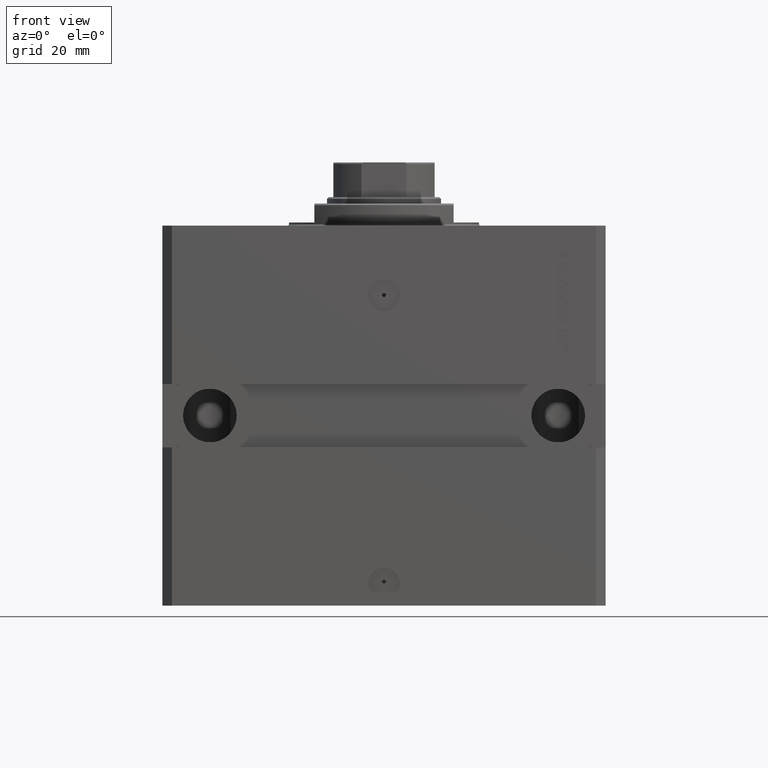
[diagram: clean part render]
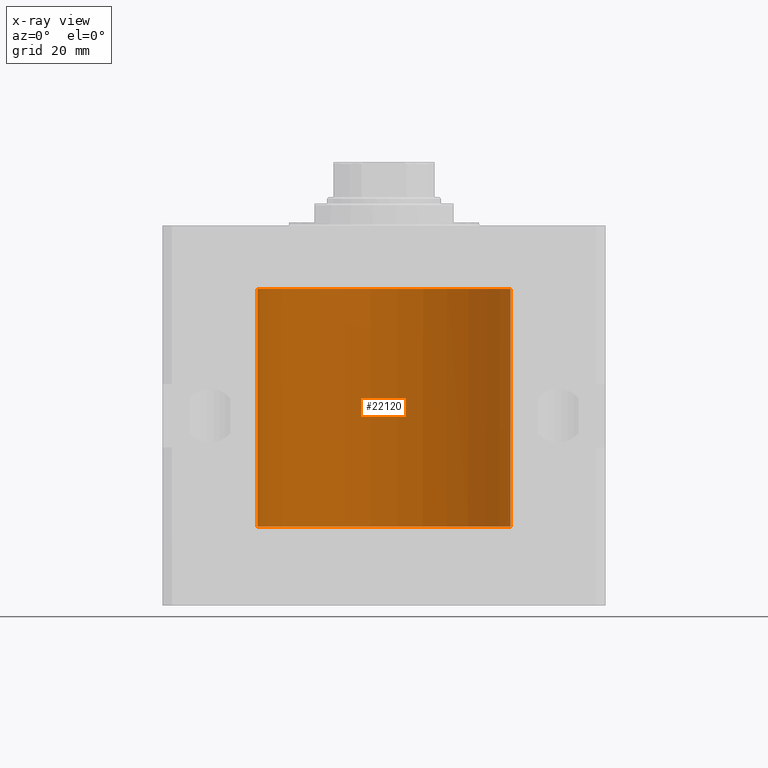
[diagram: x-ray — body ghosted, one internal face saturated and labeled with its STEP entity id]
A machine part, front view, then the same camera in x-ray: the body is ghosted and one INTERNAL B-rep face — a face not visible from any outside direction — is saturated and labeled: STEP entity #22120.
In plain terms, the highlighted cylindrical surface (partial cylindrical patch) has radius 40 mm, axis along (0, 0, 1).
Its self-contained STEP definition (entity closure, byte-faithful):
#376 = CARTESIAN_POINT ( 'NONE',  ( -39.99973691478699322, 0.1636360998065314876, -34.39126145361714748 ) ) ;
#1136 = EDGE_CURVE ( 'NONE', #36626, #48253, #29279, .T. ) ;
#2220 = LINE ( 'NONE', #17461, #40164 ) ;
#3046 = CARTESIAN_POINT ( 'NONE',  ( -40.00000000000000000, 4.898587196589413026E-15, -95.00000000000000000 ) ) ;
#3285 = CARTESIAN_POINT ( 'NONE',  ( -40.00000000000004974, 3.462873814982701370E-13, -35.62500000000321165 ) ) ;
#3867 = CARTESIAN_POINT ( 'NONE',  ( -39.99628330279644928, 0.5573335244821722156, -34.67349122557948249 ) ) ;
#3920 = CARTESIAN_POINT ( 'NONE',  ( 40.00000000000000000, 0.000000000000000000, -95.00000000000000000 ) ) ;
#4605 = CARTESIAN_POINT ( 'NONE',  ( -40.00000000000000000, 1.067655236296513633E-14, -34.37500000000000000 ) ) ;
#4913 = CARTESIAN_POINT ( 'NONE',  ( 0.000000000000000000, 0.000000000000000000, -95.00000000000000000 ) ) ;
#5529 = B_SPLINE_CURVE_WITH_KNOTS ( 'NONE', 3,
 ( #30593, #49284, #46027, #19604, #12326, #11830 ),
 .UNSPECIFIED., .F., .F.,
 ( 4, 2, 4 ),
 ( 0.0009772540346079494188, 0.001465659755749416406, 0.001954065476890883609 ),
 .UNSPECIFIED. ) ;
#5569 = ORIENTED_EDGE ( 'NONE', *, *, #7532, .F. ) ;
#5624 = VERTEX_POINT ( 'NONE', #10632 ) ;
#5732 = CARTESIAN_POINT ( 'NONE',  ( 40.00000000000000000, -8.127381911450081348E-16, -35.62500000000000711 ) ) ;
#5741 = EDGE_CURVE ( 'NONE', #22070, #48253, #34096, .T. ) ;
#5784 = EDGE_CURVE ( 'NONE', #5624, #26562, #5529, .T. ) ;
#6175 = CIRCLE ( 'NONE', #14931, 40.00000000000000000 ) ;
#6192 = CARTESIAN_POINT ( 'NONE',  ( -40.00000000000000000, 4.898587196589413026E-15, -94.37500000000000000 ) ) ;
#6299 = DIRECTION ( 'NONE',  ( -0.000000000000000000, -0.000000000000000000, 1.000000000000000000 ) ) ;
#6445 = EDGE_CURVE ( 'NONE', #20837, #9841, #23535, .T. ) ;
#6534 = CARTESIAN_POINT ( 'NONE',  ( -40.00000000000000000, 1.067655236296513633E-14, -34.37500000000000000 ) ) ;
#7532 = EDGE_CURVE ( 'NONE', #22070, #28058, #2220, .T. ) ;
#8103 = CARTESIAN_POINT ( 'NONE',  ( -39.99511598657579725, 0.6250577762831023287, -35.16284024614854076 ) ) ;
#8654 = CYLINDRICAL_SURFACE ( 'NONE', #26996, 40.00000000000000000 ) ;
#8742 = CARTESIAN_POINT ( 'NONE',  ( 40.00000000000004974, 3.413887732429780293E-13, -94.37499999999677414 ) ) ;
#8826 = CARTESIAN_POINT ( 'NONE',  ( -40.00000000000000000, 4.898587196589413026E-15, -94.37500000000000000 ) ) ;
#9381 = B_SPLINE_CURVE_WITH_KNOTS ( 'NONE', 3,
 ( #35195, #16241, #31471, #46662, #42921, #8742 ),
 .UNSPECIFIED., .F., .F.,
 ( 4, 2, 4 ),
 ( 0.0009772540346065596885, 0.001465659755748721432, 0.001954065476890883175 ),
 .UNSPECIFIED. ) ;
#9841 = VERTEX_POINT ( 'NONE', #39484 ) ;
#10250 = DIRECTION ( 'NONE',  ( 1.000000000000000000, 0.000000000000000000, 0.000000000000000000 ) ) ;
#10632 = CARTESIAN_POINT ( 'NONE',  ( 39.99511688944026844, 0.6250000000083444363, -34.99999999999904787 ) ) ;
#10829 = EDGE_LOOP ( 'NONE', ( #37390, #45913, #17027, #26887, #14911, #41823, #18309, #39811, #23918, #5569, #35675 ) ) ;
#11355 = CARTESIAN_POINT ( 'NONE',  ( -39.99819482034362039, 0.3843641341271077372, -34.50046008996472580 ) ) ;
#11830 = CARTESIAN_POINT ( 'NONE',  ( 40.00000000000004974, 3.413887943360836494E-13, -34.37499999999679545 ) ) ;
#12326 = CARTESIAN_POINT ( 'NONE',  ( 39.99999999999999289, 0.1631284562790711046, -34.37500000000014211 ) ) ;
#13183 = CARTESIAN_POINT ( 'NONE',  ( 0.000000000000000000, 0.000000000000000000, -95.00000000000000000 ) ) ;
#14911 = ORIENTED_EDGE ( 'NONE', *, *, #23309, .T. ) ;
#14931 = AXIS2_PLACEMENT_3D ( 'NONE', #43936, #39949, #10250 ) ;
#15902 = DIRECTION ( 'NONE',  ( 1.000000000000000000, 0.000000000000000000, 0.000000000000000000 ) ) ;
#16241 = CARTESIAN_POINT ( 'NONE',  ( 39.99511688944039633, 0.6250000000000321965, -94.83697203652990027 ) ) ;
#16372 = CARTESIAN_POINT ( 'NONE',  ( 39.99511688944039633, 0.6250000000000323075, -95.00000000000000000 ) ) ;
#17027 = ORIENTED_EDGE ( 'NONE', *, *, #6445, .F. ) ;
#17461 = CARTESIAN_POINT ( 'NONE',  ( -40.00000000000000000, 4.898587196589413026E-15, -95.00000000000000000 ) ) ;
#17835 = DIRECTION ( 'NONE',  ( -0.000000000000000000, -0.000000000000000000, 1.000000000000000000 ) ) ;
#18309 = ORIENTED_EDGE ( 'NONE', *, *, #5784, .T. ) ;
#18405 = CARTESIAN_POINT ( 'NONE',  ( -40.00000000000000000, 4.898587196589413026E-15, -20.00000000000000355 ) ) ;
#19367 = CARTESIAN_POINT ( 'NONE',  ( -39.99884667815961592, 0.3253863549934230548, -35.55855380835959778 ) ) ;
#19604 = CARTESIAN_POINT ( 'NONE',  ( 39.99884730045106096, 0.3253091163521321660, -34.44141080451295522 ) ) ;
#20218 = EDGE_CURVE ( 'NONE', #47978, #5624, #38340, .T. ) ;
#20569 = CARTESIAN_POINT ( 'NONE',  ( -40.00000000000000000, 0.08261046678389480369, -94.37500000000004263 ) ) ;
#20656 = CARTESIAN_POINT ( 'NONE',  ( 40.00000000000000000, 0.000000000000000000, -95.00000000000000000 ) ) ;
#20837 = VERTEX_POINT ( 'NONE', #16372 ) ;
#20975 = CARTESIAN_POINT ( 'NONE',  ( 39.99883059471594038, 0.3150922677711073816, -35.54594794608674135 ) ) ;
#22070 = VERTEX_POINT ( 'NONE', #6534 ) ;
#22120 = ADVANCED_FACE ( 'NONE', ( #42831 ), #8654, .F. ) ;
#22874 = CARTESIAN_POINT ( 'NONE',  ( -40.00000000000000000, 0.08259175989844856625, -34.37500000000000711 ) ) ;
#23309 = EDGE_CURVE ( 'NONE', #46904, #47978, #39597, .T. ) ;
#23535 = CIRCLE ( 'NONE', #30682, 40.00000000000000000 ) ;
#23839 = VECTOR ( 'NONE', #30882, 1000.000000000000000 ) ;
#23918 = ORIENTED_EDGE ( 'NONE', *, *, #33667, .T. ) ;
#24482 = CARTESIAN_POINT ( 'NONE',  ( 39.99819409212158661, 0.3844402436586041860, -35.49948421922784547 ) ) ;
#26562 = VERTEX_POINT ( 'NONE', #44919 ) ;
#26887 = ORIENTED_EDGE ( 'NONE', *, *, #43803, .T. ) ;
#26996 = AXIS2_PLACEMENT_3D ( 'NONE', #4913, #43074, #15902 ) ;
#27745 = B_SPLINE_CURVE_WITH_KNOTS ( 'NONE', 3,
 ( #8826, #20569, #35767, #28069, #31798, #32046, #46994, #38785 ),
 .UNSPECIFIED., .F., .F.,
 ( 4, 2, 2, 4 ),
 ( 2.088332496733259407E-18, 0.0002443135086519913120, 0.0004886270173039804557, 0.0009772540346079294695 ),
 .UNSPECIFIED. ) ;
#27961 = DIRECTION ( 'NONE',  ( 0.000000000000000000, 0.000000000000000000, 1.000000000000000000 ) ) ;
#28058 = VERTEX_POINT ( 'NONE', #18405 ) ;
#28069 = CARTESIAN_POINT ( 'NONE',  ( -39.99883059471594038, 0.3150922677711069375, -94.45405205391325865 ) ) ;
#28508 = CARTESIAN_POINT ( 'NONE',  ( 40.00000000000000000, 0.000000000000000000, -20.00000000000000355 ) ) ;
#28953 = DIRECTION ( 'NONE',  ( -0.000000000000000000, -0.000000000000000000, 1.000000000000000000 ) ) ;
#29279 = LINE ( 'NONE', #3046, #30452 ) ;
#30452 = VECTOR ( 'NONE', #6299, 1000.000000000000000 ) ;
#30593 = CARTESIAN_POINT ( 'NONE',  ( 39.99511688944026844, 0.6250000000083444363, -34.99999999999904787 ) ) ;
#30682 = AXIS2_PLACEMENT_3D ( 'NONE', #13183, #27961, #35428 ) ;
#30882 = DIRECTION ( 'NONE',  ( -0.000000000000000000, -0.000000000000000000, 1.000000000000000000 ) ) ;
#31471 = CARTESIAN_POINT ( 'NONE',  ( 39.99626911702399923, 0.5586305618003357676, -94.67476192424716430 ) ) ;
#31798 = CARTESIAN_POINT ( 'NONE',  ( -39.99819409212159371, 0.3844402436586072946, -94.50051578077217584 ) ) ;
#32046 = CARTESIAN_POINT ( 'NONE',  ( -39.99628216152225235, 0.5574163469044005614, -94.67361501105077082 ) ) ;
#33667 = EDGE_CURVE ( 'NONE', #42589, #28058, #6175, .T. ) ;
#34076 = CARTESIAN_POINT ( 'NONE',  ( -39.99511779353280616, 0.6249421451454513221, -34.83671655111833587 ) ) ;
#34096 = B_SPLINE_CURVE_WITH_KNOTS ( 'NONE', 3,
 ( #4605, #22874, #376, #37818, #11355, #3867, #34076, #8103, #34567, #19367, #38306, #46519 ),
 .UNSPECIFIED., .F., .F.,
 ( 4, 2, 2, 2, 2, 4 ),
 ( 1.036137471307501474E-18, 0.0002442581846113557891, 0.0004885163692227106023, 0.0009770327384454201205, 0.001465549107668129639, 0.001954065476890838940 ),
 .UNSPECIFIED. ) ;
#34567 = CARTESIAN_POINT ( 'NONE',  ( -39.99626798708276709, 0.5587118831704992461, -35.32511485424845432 ) ) ;
#35195 = CARTESIAN_POINT ( 'NONE',  ( 39.99511688944039633, 0.6250000000000323075, -95.00000000000000000 ) ) ;
#35428 = DIRECTION ( 'NONE',  ( 1.000000000000000000, 0.000000000000000000, 0.000000000000000000 ) ) ;
#35675 = ORIENTED_EDGE ( 'NONE', *, *, #5741, .T. ) ;
#35767 = CARTESIAN_POINT ( 'NONE',  ( -39.99973678563279122, 0.1636739505491698610, -94.39126924263916862 ) ) ;
#36171 = CARTESIAN_POINT ( 'NONE',  ( 39.99511688944039633, 0.6250000000003876899, -35.16310183128194922 ) ) ;
#36626 = VERTEX_POINT ( 'NONE', #6192 ) ;
#36660 = EDGE_CURVE ( 'NONE', #26562, #42589, #38609, .T. ) ;
#37237 = EDGE_CURVE ( 'NONE', #36626, #9841, #27745, .T. ) ;
#37390 = ORIENTED_EDGE ( 'NONE', *, *, #1136, .F. ) ;
#37818 = CARTESIAN_POINT ( 'NONE',  ( -39.99883108112248919, 0.3150272514608761787, -34.45401719637956717 ) ) ;
#38268 = CARTESIAN_POINT ( 'NONE',  ( 40.00000000000000000, -8.127381911450081348E-16, -35.62500000000000711 ) ) ;
#38306 = CARTESIAN_POINT ( 'NONE',  ( -39.99999999999999289, 0.1631654129523948116, -35.62499999999986500 ) ) ;
#38340 = B_SPLINE_CURVE_WITH_KNOTS ( 'NONE', 3,
 ( #5732, #43413, #44156, #20975, #24482, #39669, #36171, #47635 ),
 .UNSPECIFIED., .F., .F.,
 ( 4, 2, 2, 4 ),
 ( 7.898288041491570923E-19, 0.0002443135086519880052, 0.0004886270173039750347, 0.0009772540346079494188 ),
 .UNSPECIFIED. ) ;
#38609 = LINE ( 'NONE', #3920, #23839 ) ;
#38785 = CARTESIAN_POINT ( 'NONE',  ( -39.99511688944026844, 0.6250000000083313356, -95.00000000000095213 ) ) ;
#39484 = CARTESIAN_POINT ( 'NONE',  ( -39.99511688944026844, 0.6250000000083313356, -95.00000000000095213 ) ) ;
#39597 = LINE ( 'NONE', #20656, #46129 ) ;
#39669 = CARTESIAN_POINT ( 'NONE',  ( 39.99628216152225235, 0.5574163469044073338, -35.32638498894925050 ) ) ;
#39811 = ORIENTED_EDGE ( 'NONE', *, *, #36660, .T. ) ;
#39949 = DIRECTION ( 'NONE',  ( 0.000000000000000000, 0.000000000000000000, 1.000000000000000000 ) ) ;
#40164 = VECTOR ( 'NONE', #28953, 1000.000000000000000 ) ;
#40231 = CARTESIAN_POINT ( 'NONE',  ( 40.00000000000004974, 3.413887732429780293E-13, -94.37499999999677414 ) ) ;
#41823 = ORIENTED_EDGE ( 'NONE', *, *, #20218, .T. ) ;
#42589 = VERTEX_POINT ( 'NONE', #28508 ) ;
#42831 = FACE_OUTER_BOUND ( 'NONE', #10829, .T. ) ;
#42921 = CARTESIAN_POINT ( 'NONE',  ( 39.99999999999999289, 0.1631284562793052784, -94.37500000000015632 ) ) ;
#43074 = DIRECTION ( 'NONE',  ( -0.000000000000000000, -0.000000000000000000, 1.000000000000000000 ) ) ;
#43413 = CARTESIAN_POINT ( 'NONE',  ( 39.99999999999999289, 0.08261046678389016851, -35.62500000000000711 ) ) ;
#43803 = EDGE_CURVE ( 'NONE', #20837, #46904, #9381, .T. ) ;
#43936 = CARTESIAN_POINT ( 'NONE',  ( 0.000000000000000000, 0.000000000000000000, -20.00000000000000355 ) ) ;
#44156 = CARTESIAN_POINT ( 'NONE',  ( 39.99973678563279833, 0.1636739505491660862, -35.60873075736084559 ) ) ;
#44919 = CARTESIAN_POINT ( 'NONE',  ( 40.00000000000004974, 3.413887943360836494E-13, -34.37499999999679545 ) ) ;
#45913 = ORIENTED_EDGE ( 'NONE', *, *, #37237, .T. ) ;
#46027 = CARTESIAN_POINT ( 'NONE',  ( 39.99626911702399923, 0.5586305617998182926, -34.67476192424639692 ) ) ;
#46129 = VECTOR ( 'NONE', #17835, 1000.000000000000000 ) ;
#46519 = CARTESIAN_POINT ( 'NONE',  ( -40.00000000000004974, 3.462873814982701370E-13, -35.62500000000321165 ) ) ;
#46662 = CARTESIAN_POINT ( 'NONE',  ( 39.99884730045106096, 0.3253091163526227736, -94.44141080451316839 ) ) ;
#46904 = VERTEX_POINT ( 'NONE', #40231 ) ;
#46994 = CARTESIAN_POINT ( 'NONE',  ( -39.99511688944040344, 0.6250000000003784750, -94.83689816871809342 ) ) ;
#47635 = CARTESIAN_POINT ( 'NONE',  ( 39.99511688944026844, 0.6250000000083444363, -34.99999999999904787 ) ) ;
#47978 = VERTEX_POINT ( 'NONE', #38268 ) ;
#48253 = VERTEX_POINT ( 'NONE', #3285 ) ;
#49284 = CARTESIAN_POINT ( 'NONE',  ( 39.99511688944040344, 0.6249999999996637134, -34.83697203652874208 ) ) ;